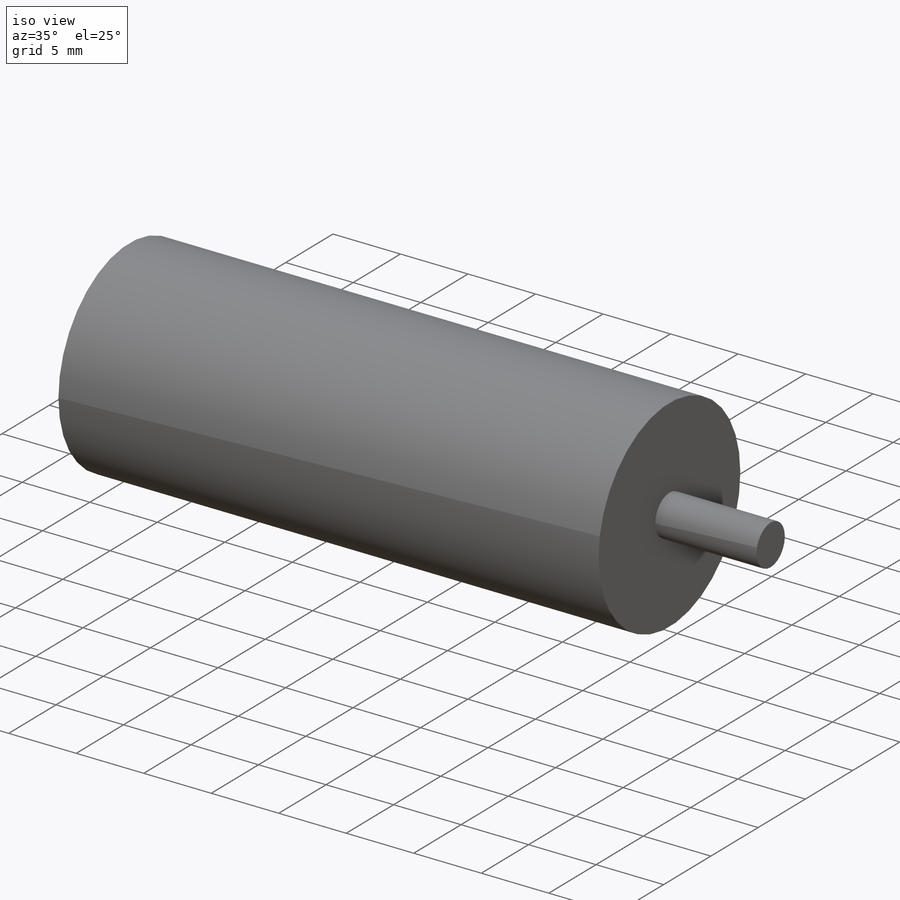
[diagram: iso view]
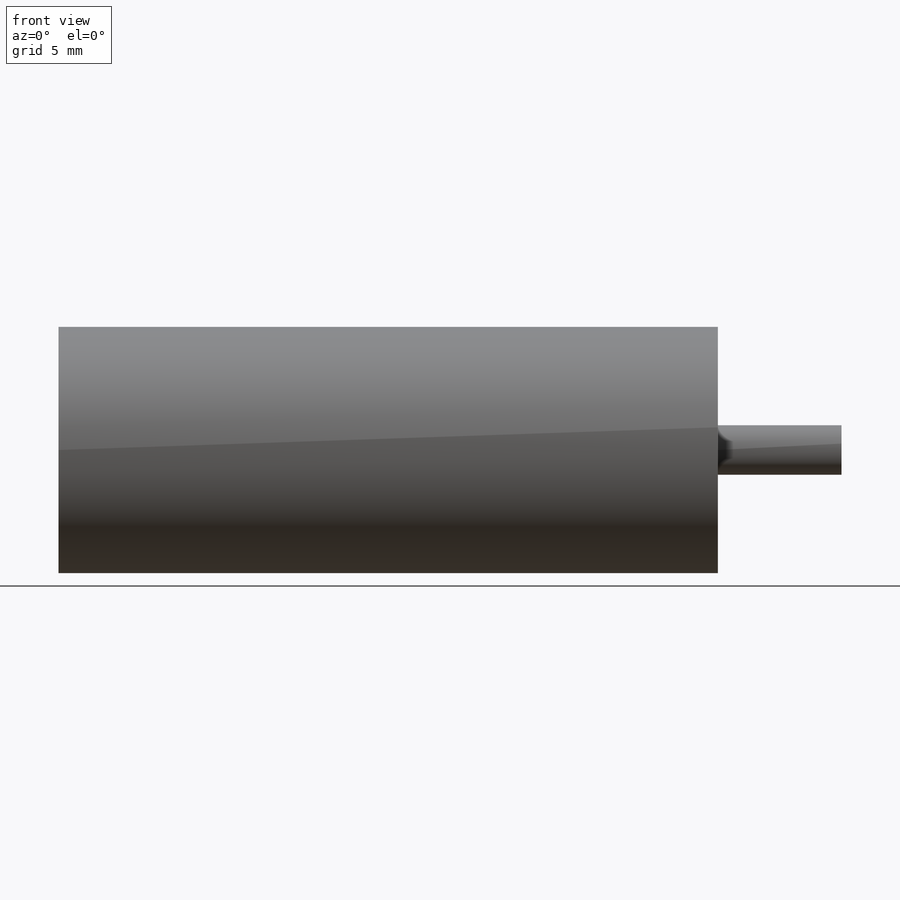
[diagram: front view]
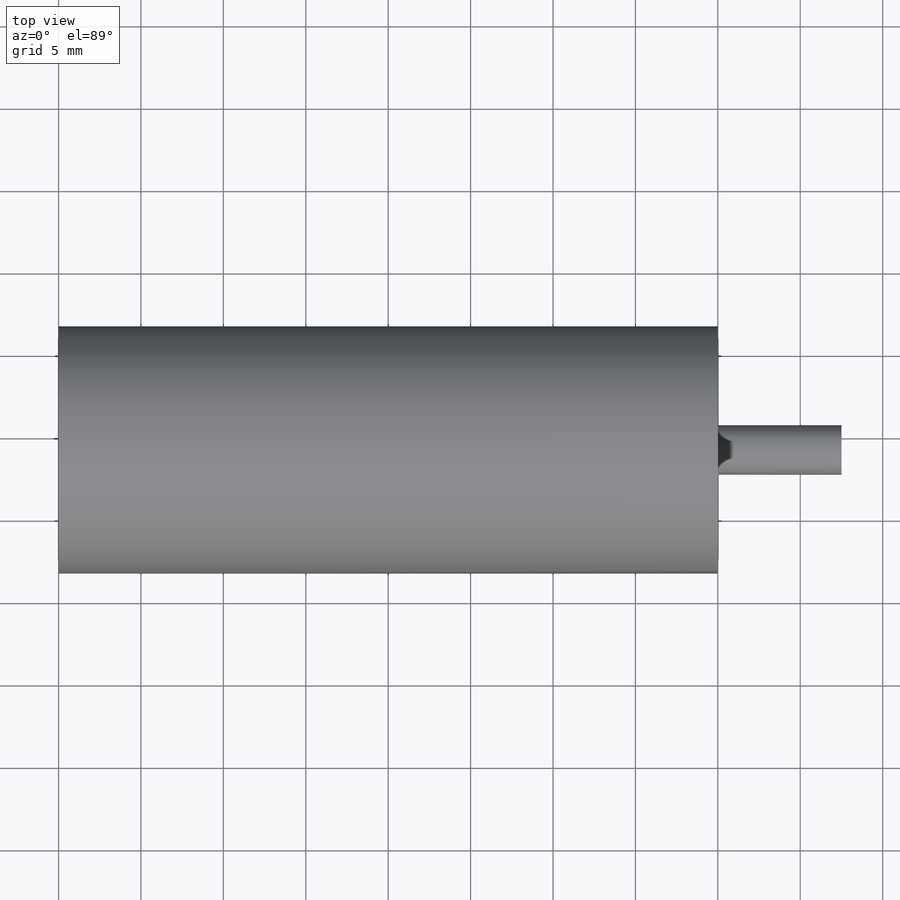
[diagram: top view]
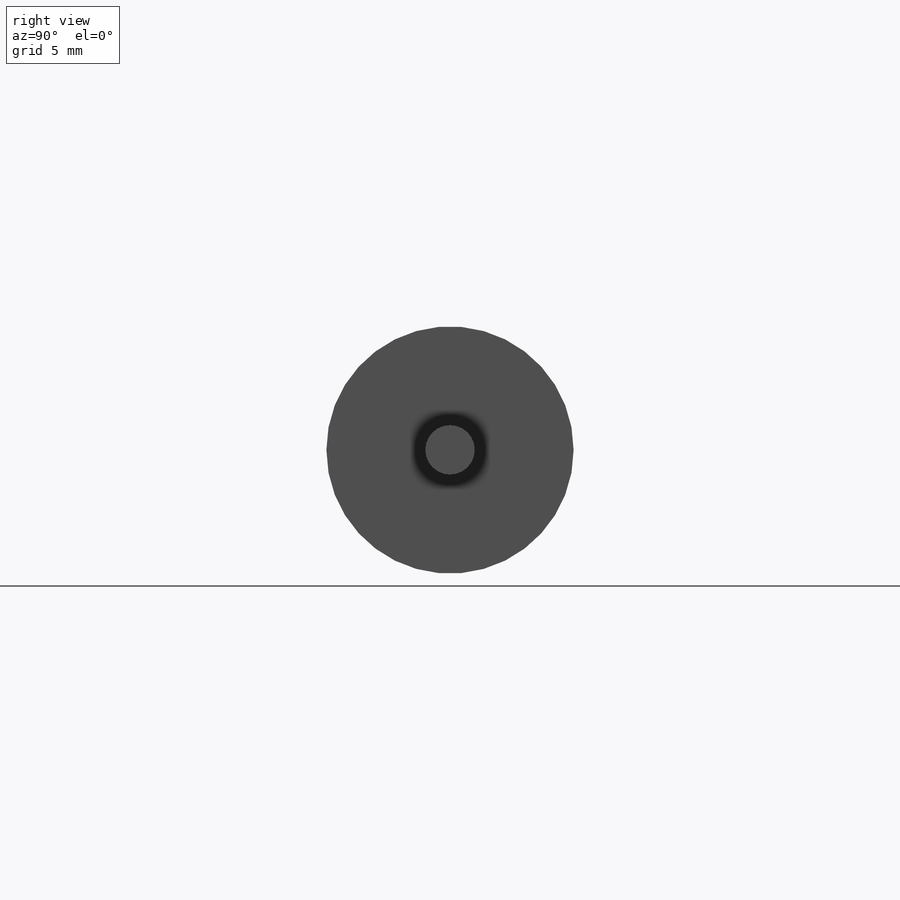
[diagram: right view]
SOLIDWORKS PART (.sldprt)
format: sldprt  version: not decoded by parser v0  size: 135,168 bytes
history: native  units: mm
features: sketch x4, extrude x2, cut_extrude x2, material x1 (+13 scaffold rows collapsed)
feature tree (22):
  scaffold x13  (default folders/planes/origin — collapsed)
  material  "Material <not specified>"
  sketch  "Sketch1"  dims[D1=15.0mm]
  extrude  "Boss-Extrude1"  Depth=45mm
  sketch  "Sketch2"  dims[D1=~0.670171mm]
  extrude  "Boss-Extrude2"  Depth=15mm
  sketch  "Sketch3"
  cut_extrude  "Cut-Extrude1"  Depth=7.5mm
  sketch  "Sketch4"
  cut_extrude  "Cut-Extrude2"  Depth=5mm
decode coverage: 6 of 8 modeling features carry decoded parameters
note: ~ marks probable driven/reference dimensions
note: suppression state not decoded; provenance and decode notes live in map.json
